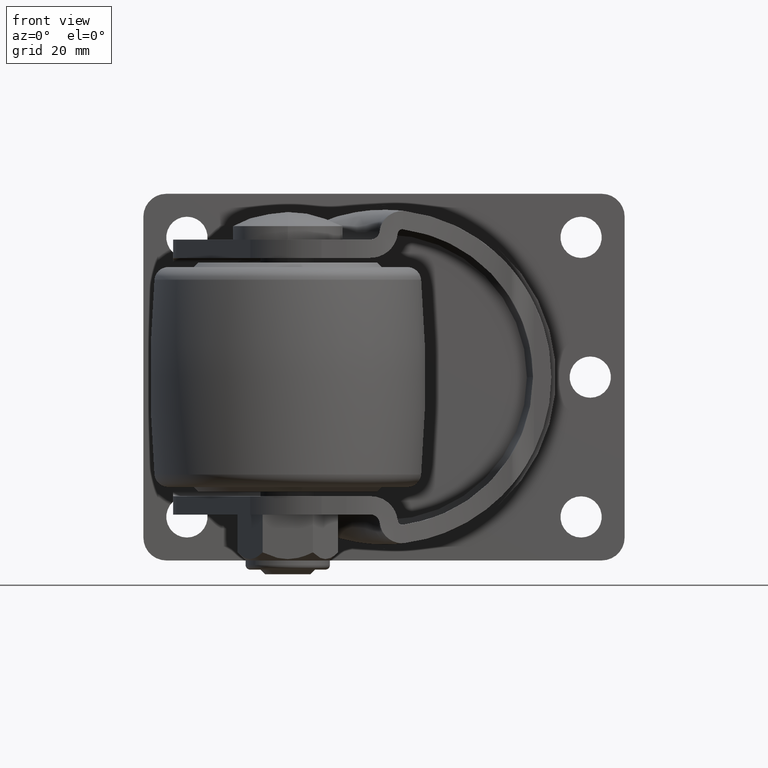
[diagram: clean part render]
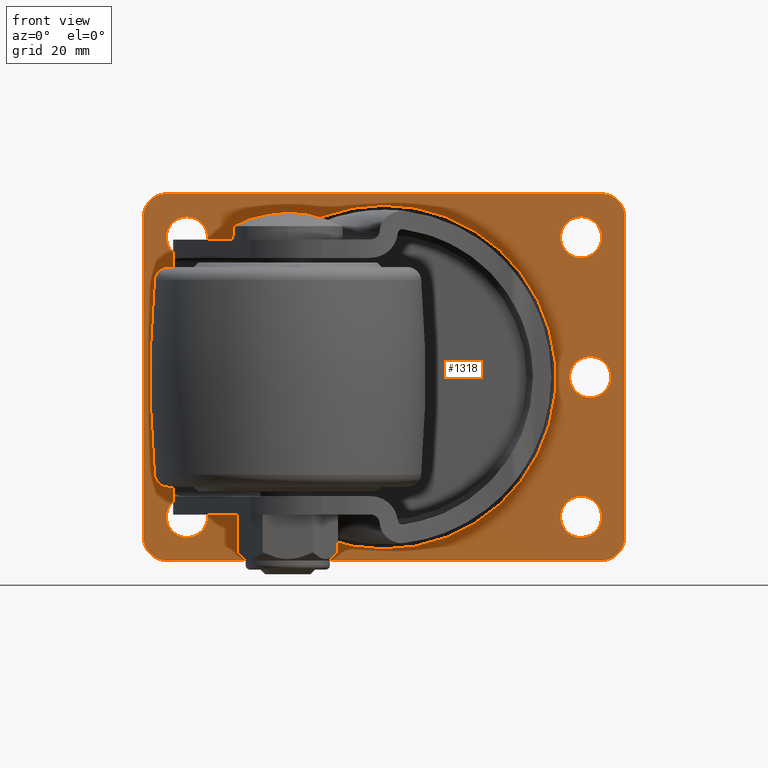
[diagram: same view with one face highlighted and labeled with its STEP entity id]
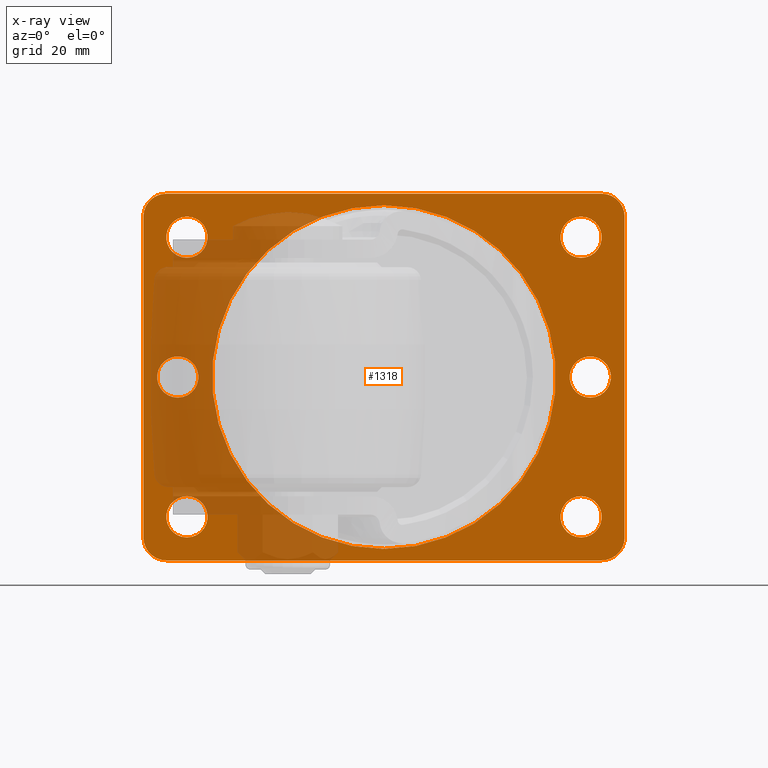
[diagram: x-ray of the same camera — body ghosted, the highlighted face saturated]
A machine part, front view. The second image highlights one B-rep face of the part: STEP entity #1318.
The next image is the same camera in x-ray: the body ghosted, the highlighted face saturated — about 32% of this face is hidden behind the body in this view.
In plain terms, the highlighted planar face has unit normal (0, 1, 0).
Its self-contained STEP definition (entity closure, byte-faithful):
#18 = AXIS2_PLACEMENT_3D ( 'NONE', #3125, #4708, #1131 ) ;
#100 = EDGE_CURVE ( 'NONE', #6033, #288, #905, .T. ) ;
#129 = VERTEX_POINT ( 'NONE', #4934 ) ;
#131 = CARTESIAN_POINT ( 'NONE',  ( 21.00000000000002487, 53.00000000000000711, 37.50000000000000000 ) ) ;
#154 = VERTEX_POINT ( 'NONE', #1136 ) ;
#183 = ORIENTED_EDGE ( 'NONE', *, *, #3888, .T. ) ;
#210 = DIRECTION ( 'NONE',  ( 0.000000000000000000, 1.000000000000000000, 0.000000000000000000 ) ) ;
#226 = CIRCLE ( 'NONE', #2136, 4.500000000000001776 ) ;
#245 = CIRCLE ( 'NONE', #558, 4.500000000000003553 ) ;
#246 = DIRECTION ( 'NONE',  ( 0.000000000000000000, 1.000000000000000000, 0.000000000000000000 ) ) ;
#256 = ORIENTED_EDGE ( 'NONE', *, *, #1891, .T. ) ;
#288 = VERTEX_POINT ( 'NONE', #3499 ) ;
#313 = DIRECTION ( 'NONE',  ( 0.000000000000000000, -0.000000000000000000, 1.000000000000000000 ) ) ;
#334 = CARTESIAN_POINT ( 'NONE',  ( -21.99999999999997868, 53.00000000000000000, -30.50000000000002487 ) ) ;
#344 = AXIS2_PLACEMENT_3D ( 'NONE', #5015, #5539, #1004 ) ;
#351 = AXIS2_PLACEMENT_3D ( 'NONE', #5596, #2556, #5162 ) ;
#356 = AXIS2_PLACEMENT_3D ( 'NONE', #738, #246, #2724 ) ;
#370 = VERTEX_POINT ( 'NONE', #3691 ) ;
#375 = DIRECTION ( 'NONE',  ( 0.000000000000000000, 1.000000000000000000, 0.000000000000000000 ) ) ;
#392 = CIRCLE ( 'NONE', #5234, 5.000000000000000888 ) ;
#498 = ORIENTED_EDGE ( 'NONE', *, *, #1764, .T. ) ;
#547 = CIRCLE ( 'NONE', #344, 4.500000000000003553 ) ;
#549 = VERTEX_POINT ( 'NONE', #3061 ) ;
#552 = VECTOR ( 'NONE', #5653, 1000.000000000000000 ) ;
#558 = AXIS2_PLACEMENT_3D ( 'NONE', #334, #375, #724 ) ;
#569 = VERTEX_POINT ( 'NONE', #1476 ) ;
#668 = EDGE_CURVE ( 'NONE', #4223, #370, #5227, .T. ) ;
#672 = DIRECTION ( 'NONE',  ( 0.000000000000000000, 1.000000000000000000, 0.000000000000000000 ) ) ;
#676 = DIRECTION ( 'NONE',  ( 0.000000000000000000, 0.000000000000000000, 1.000000000000000000 ) ) ;
#689 = EDGE_LOOP ( 'NONE', ( #498, #6228 ) ) ;
#724 = DIRECTION ( 'NONE',  ( 0.000000000000000000, 0.000000000000000000, 1.000000000000000000 ) ) ;
#732 = FACE_BOUND ( 'NONE', #1886, .T. ) ;
#738 = CARTESIAN_POINT ( 'NONE',  ( 64.00000000000002842, 53.00000000000000000, 30.49999999999996447 ) ) ;
#773 = CARTESIAN_POINT ( 'NONE',  ( -21.99999999999997868, 53.00000000000000000, 30.50000000000002487 ) ) ;
#838 = DIRECTION ( 'NONE',  ( 0.000000000000000000, 1.000000000000000000, 0.000000000000000000 ) ) ;
#845 = CARTESIAN_POINT ( 'NONE',  ( -23.99999999999997868, 53.00000000000000000, 4.500000000000001776 ) ) ;
#876 = CARTESIAN_POINT ( 'NONE',  ( -21.99999999999997868, 53.00000000000000000, -35.00000000000002842 ) ) ;
#905 = CIRCLE ( 'NONE', #3346, 4.500000000000003553 ) ;
#909 = VERTEX_POINT ( 'NONE', #5220 ) ;
#925 = EDGE_LOOP ( 'NONE', ( #2810, #3948, #3151, #5798, #5062, #2709, #4304, #183 ) ) ;
#952 = DIRECTION ( 'NONE',  ( -0.000000000000000000, -1.000000000000000000, -0.000000000000000000 ) ) ;
#1004 = DIRECTION ( 'NONE',  ( 0.000000000000000000, 0.000000000000000000, 1.000000000000000000 ) ) ;
#1050 = EDGE_LOOP ( 'NONE', ( #4238, #6287 ) ) ;
#1073 = EDGE_CURVE ( 'NONE', #4036, #4993, #392, .T. ) ;
#1089 = ORIENTED_EDGE ( 'NONE', *, *, #4553, .T. ) ;
#1131 = DIRECTION ( 'NONE',  ( 2.775557561562892929E-15, 0.000000000000000000, 1.000000000000000000 ) ) ;
#1136 = CARTESIAN_POINT ( 'NONE',  ( 73.50000000000002842, 53.00000000000000711, 35.00000000000000000 ) ) ;
#1169 = LINE ( 'NONE', #2669, #1621 ) ;
#1173 = CARTESIAN_POINT ( 'NONE',  ( -31.49999999999997158, 53.00000000000000711, 39.99999999999999289 ) ) ;
#1179 = CIRCLE ( 'NONE', #3089, 4.999999999999997335 ) ;
#1210 = VERTEX_POINT ( 'NONE', #5868 ) ;
#1246 = ORIENTED_EDGE ( 'NONE', *, *, #5071, .T. ) ;
#1284 = DIRECTION ( 'NONE',  ( 0.000000000000000000, 0.000000000000000000, 1.000000000000000000 ) ) ;
#1294 = DIRECTION ( 'NONE',  ( 0.000000000000000000, 1.000000000000000000, 0.000000000000000000 ) ) ;
#1318 = ADVANCED_FACE ( 'NONE', ( #4814, #4317, #1332, #2864, #6303, #732, #4845, #1796 ), #2367, .F. ) ;
#1332 = FACE_BOUND ( 'NONE', #689, .T. ) ;
#1366 = DIRECTION ( 'NONE',  ( 0.000000000000000000, 1.000000000000000000, 0.000000000000000000 ) ) ;
#1401 = AXIS2_PLACEMENT_3D ( 'NONE', #1730, #3764, #5764 ) ;
#1408 = EDGE_CURVE ( 'NONE', #5242, #4733, #4470, .T. ) ;
#1476 = CARTESIAN_POINT ( 'NONE',  ( 68.50000000000001421, 53.00000000000000711, 39.99999999999999289 ) ) ;
#1618 = CARTESIAN_POINT ( 'NONE',  ( -31.49999999999997158, 53.00000000000000711, 35.00000000000000000 ) ) ;
#1621 = VECTOR ( 'NONE', #6187, 1000.000000000000000 ) ;
#1705 = AXIS2_PLACEMENT_3D ( 'NONE', #4842, #838, #4740 ) ;
#1720 = CIRCLE ( 'NONE', #4795, 4.500000000000003553 ) ;
#1723 = VERTEX_POINT ( 'NONE', #3535 ) ;
#1730 = CARTESIAN_POINT ( 'NONE',  ( 21.00000000000002487, 53.00000000000000711, 0.000000000000000000 ) ) ;
#1764 = EDGE_CURVE ( 'NONE', #6006, #6261, #547, .T. ) ;
#1796 = FACE_BOUND ( 'NONE', #2717, .T. ) ;
#1886 = EDGE_LOOP ( 'NONE', ( #1089, #4160 ) ) ;
#1889 = CARTESIAN_POINT ( 'NONE',  ( 64.00000000000002842, 53.00000000000000000, 30.49999999999996447 ) ) ;
#1891 = EDGE_CURVE ( 'NONE', #909, #3740, #226, .T. ) ;
#1919 = CARTESIAN_POINT ( 'NONE',  ( 64.00000000000002842, 53.00000000000000000, 34.99999999999997158 ) ) ;
#1955 = ORIENTED_EDGE ( 'NONE', *, *, #100, .T. ) ;
#2045 = EDGE_CURVE ( 'NONE', #154, #4993, #6132, .T. ) ;
#2055 = VERTEX_POINT ( 'NONE', #1618 ) ;
#2136 = AXIS2_PLACEMENT_3D ( 'NONE', #4687, #3194, #676 ) ;
#2141 = CIRCLE ( 'NONE', #1705, 4.500000000000003553 ) ;
#2224 = ORIENTED_EDGE ( 'NONE', *, *, #668, .T. ) ;
#2241 = VERTEX_POINT ( 'NONE', #2498 ) ;
#2268 = CIRCLE ( 'NONE', #5639, 37.50000000000000000 ) ;
#2325 = EDGE_LOOP ( 'NONE', ( #4345, #5654 ) ) ;
#2367 = PLANE ( 'NONE',  #3029 ) ;
#2445 = DIRECTION ( 'NONE',  ( 0.000000000000000000, 1.000000000000000000, 0.000000000000000000 ) ) ;
#2498 = CARTESIAN_POINT ( 'NONE',  ( 66.00000000000002842, 53.00000000000000000, 4.499999999999993783 ) ) ;
#2556 = DIRECTION ( 'NONE',  ( 0.000000000000000000, 1.000000000000000000, 0.000000000000000000 ) ) ;
#2626 = DIRECTION ( 'NONE',  ( -0.000000000000000000, -1.000000000000000000, -0.000000000000000000 ) ) ;
#2662 = CARTESIAN_POINT ( 'NONE',  ( 66.00000000000002842, 53.00000000000000000, -4.500000000000015987 ) ) ;
#2669 = CARTESIAN_POINT ( 'NONE',  ( -31.49999999999997868, 53.00000000000000711, -40.00000000000000711 ) ) ;
#2699 = EDGE_CURVE ( 'NONE', #1723, #129, #3106, .T. ) ;
#2705 = EDGE_CURVE ( 'NONE', #3669, #2241, #1720, .T. ) ;
#2709 = ORIENTED_EDGE ( 'NONE', *, *, #4016, .T. ) ;
#2717 = EDGE_LOOP ( 'NONE', ( #1246, #256 ) ) ;
#2724 = DIRECTION ( 'NONE',  ( 0.000000000000000000, 0.000000000000000000, 1.000000000000000000 ) ) ;
#2725 = DIRECTION ( 'NONE',  ( 0.000000000000000000, 0.000000000000000000, 1.000000000000000000 ) ) ;
#2784 = ORIENTED_EDGE ( 'NONE', *, *, #3897, .T. ) ;
#2810 = ORIENTED_EDGE ( 'NONE', *, *, #3560, .F. ) ;
#2864 = FACE_BOUND ( 'NONE', #3573, .T. ) ;
#2953 = EDGE_CURVE ( 'NONE', #288, #6033, #4156, .T. ) ;
#2996 = CIRCLE ( 'NONE', #3204, 4.500000000000007105 ) ;
#3029 = AXIS2_PLACEMENT_3D ( 'NONE', #3831, #1294, #313 ) ;
#3048 = CARTESIAN_POINT ( 'NONE',  ( 73.50000000000001421, 53.00000000000000711, -40.00000000000000711 ) ) ;
#3061 = CARTESIAN_POINT ( 'NONE',  ( -26.49999999999997158, 53.00000000000000711, 39.99999999999999289 ) ) ;
#3089 = AXIS2_PLACEMENT_3D ( 'NONE', #4614, #2626, #5718 ) ;
#3106 = CIRCLE ( 'NONE', #5837, 4.500000000000007105 ) ;
#3125 = CARTESIAN_POINT ( 'NONE',  ( 68.50000000000001421, 53.00000000000000711, 34.99999999999999289 ) ) ;
#3151 = ORIENTED_EDGE ( 'NONE', *, *, #5645, .F. ) ;
#3194 = DIRECTION ( 'NONE',  ( 0.000000000000000000, 1.000000000000000000, 0.000000000000000000 ) ) ;
#3195 = VECTOR ( 'NONE', #4465, 1000.000000000000000 ) ;
#3204 = AXIS2_PLACEMENT_3D ( 'NONE', #4690, #210, #5238 ) ;
#3228 = CARTESIAN_POINT ( 'NONE',  ( -23.99999999999997868, 53.00000000000000000, 0.000000000000000000 ) ) ;
#3310 = CIRCLE ( 'NONE', #351, 4.500000000000003553 ) ;
#3346 = AXIS2_PLACEMENT_3D ( 'NONE', #1889, #2445, #3568 ) ;
#3450 = CARTESIAN_POINT ( 'NONE',  ( -31.49999999999997868, 53.00000000000000711, -40.00000000000000711 ) ) ;
#3468 = AXIS2_PLACEMENT_3D ( 'NONE', #5366, #1366, #4349 ) ;
#3499 = CARTESIAN_POINT ( 'NONE',  ( 64.00000000000002842, 53.00000000000000000, 25.99999999999996092 ) ) ;
#3535 = CARTESIAN_POINT ( 'NONE',  ( -21.99999999999997868, 53.00000000000000000, 26.00000000000002132 ) ) ;
#3560 = EDGE_CURVE ( 'NONE', #5883, #2055, #5541, .T. ) ;
#3568 = DIRECTION ( 'NONE',  ( 0.000000000000000000, 0.000000000000000000, 1.000000000000000000 ) ) ;
#3573 = EDGE_LOOP ( 'NONE', ( #2224, #2784 ) ) ;
#3669 = VERTEX_POINT ( 'NONE', #2662 ) ;
#3691 = CARTESIAN_POINT ( 'NONE',  ( 64.00000000000001421, 53.00000000000000000, -35.00000000000003553 ) ) ;
#3692 = DIRECTION ( 'NONE',  ( -0.000000000000000000, -1.000000000000000000, -0.000000000000000000 ) ) ;
#3740 = VERTEX_POINT ( 'NONE', #845 ) ;
#3748 = CIRCLE ( 'NONE', #5631, 4.500000000000001776 ) ;
#3753 = CIRCLE ( 'NONE', #5637, 5.000000000000000888 ) ;
#3764 = DIRECTION ( 'NONE',  ( -0.000000000000000000, -1.000000000000000000, -0.000000000000000000 ) ) ;
#3831 = CARTESIAN_POINT ( 'NONE',  ( 0.000000000000000000, 53.00000000000000711, 0.000000000000000000 ) ) ;
#3888 = EDGE_CURVE ( 'NONE', #549, #2055, #1179, .T. ) ;
#3897 = EDGE_CURVE ( 'NONE', #370, #4223, #3310, .T. ) ;
#3948 = ORIENTED_EDGE ( 'NONE', *, *, #5570, .T. ) ;
#4016 = EDGE_CURVE ( 'NONE', #154, #569, #6031, .T. ) ;
#4036 = VERTEX_POINT ( 'NONE', #4207 ) ;
#4091 = EDGE_CURVE ( 'NONE', #2241, #3669, #2141, .T. ) ;
#4119 = CARTESIAN_POINT ( 'NONE',  ( 21.00000000000002487, 53.00000000000000711, 0.000000000000000000 ) ) ;
#4156 = CIRCLE ( 'NONE', #356, 4.500000000000003553 ) ;
#4160 = ORIENTED_EDGE ( 'NONE', *, *, #2699, .T. ) ;
#4207 = CARTESIAN_POINT ( 'NONE',  ( 68.50000000000000000, 53.00000000000000711, -40.00000000000000711 ) ) ;
#4223 = VERTEX_POINT ( 'NONE', #4634 ) ;
#4238 = ORIENTED_EDGE ( 'NONE', *, *, #1408, .F. ) ;
#4274 = DIRECTION ( 'NONE',  ( -0.000000000000000000, -1.000000000000000000, -0.000000000000000000 ) ) ;
#4304 = ORIENTED_EDGE ( 'NONE', *, *, #5971, .F. ) ;
#4317 = FACE_OUTER_BOUND ( 'NONE', #925, .T. ) ;
#4345 = ORIENTED_EDGE ( 'NONE', *, *, #4091, .T. ) ;
#4349 = DIRECTION ( 'NONE',  ( 0.000000000000000000, 0.000000000000000000, 1.000000000000000000 ) ) ;
#4461 = CARTESIAN_POINT ( 'NONE',  ( 21.00000000000002842, 53.00000000000000711, -37.50000000000000000 ) ) ;
#4465 = DIRECTION ( 'NONE',  ( 8.673617379884035472E-17, 0.000000000000000000, 1.000000000000000000 ) ) ;
#4470 = CIRCLE ( 'NONE', #1401, 37.50000000000000000 ) ;
#4553 = EDGE_CURVE ( 'NONE', #129, #1723, #2996, .T. ) ;
#4614 = CARTESIAN_POINT ( 'NONE',  ( -26.49999999999997158, 53.00000000000000711, 35.00000000000000000 ) ) ;
#4634 = CARTESIAN_POINT ( 'NONE',  ( 64.00000000000001421, 53.00000000000000000, -26.00000000000002842 ) ) ;
#4687 = CARTESIAN_POINT ( 'NONE',  ( -23.99999999999997868, 53.00000000000000000, 0.000000000000000000 ) ) ;
#4690 = CARTESIAN_POINT ( 'NONE',  ( -21.99999999999997868, 53.00000000000000000, 30.50000000000002487 ) ) ;
#4708 = DIRECTION ( 'NONE',  ( -0.000000000000000000, -1.000000000000000000, -0.000000000000000000 ) ) ;
#4733 = VERTEX_POINT ( 'NONE', #4461 ) ;
#4740 = DIRECTION ( 'NONE',  ( 0.000000000000000000, 0.000000000000000000, 1.000000000000000000 ) ) ;
#4795 = AXIS2_PLACEMENT_3D ( 'NONE', #5692, #672, #4815 ) ;
#4814 = FACE_BOUND ( 'NONE', #1050, .T. ) ;
#4815 = DIRECTION ( 'NONE',  ( 0.000000000000000000, 0.000000000000000000, 1.000000000000000000 ) ) ;
#4842 = CARTESIAN_POINT ( 'NONE',  ( 66.00000000000002842, 53.00000000000000000, -1.084202172485504434E-14 ) ) ;
#4845 = FACE_BOUND ( 'NONE', #2325, .T. ) ;
#4934 = CARTESIAN_POINT ( 'NONE',  ( -21.99999999999997868, 53.00000000000000000, 35.00000000000002842 ) ) ;
#4993 = VERTEX_POINT ( 'NONE', #5633 ) ;
#5015 = CARTESIAN_POINT ( 'NONE',  ( -21.99999999999997868, 53.00000000000000000, -30.50000000000002487 ) ) ;
#5029 = DIRECTION ( 'NONE',  ( 0.000000000000000000, 0.000000000000000000, 1.000000000000000000 ) ) ;
#5062 = ORIENTED_EDGE ( 'NONE', *, *, #2045, .F. ) ;
#5071 = EDGE_CURVE ( 'NONE', #3740, #909, #3748, .T. ) ;
#5162 = DIRECTION ( 'NONE',  ( 0.000000000000000000, 0.000000000000000000, 1.000000000000000000 ) ) ;
#5210 = VECTOR ( 'NONE', #5676, 1000.000000000000000 ) ;
#5220 = CARTESIAN_POINT ( 'NONE',  ( -23.99999999999997868, 53.00000000000000000, -4.500000000000001776 ) ) ;
#5227 = CIRCLE ( 'NONE', #3468, 4.500000000000003553 ) ;
#5228 = DIRECTION ( 'NONE',  ( 0.000000000000000000, 1.000000000000000000, 0.000000000000000000 ) ) ;
#5234 = AXIS2_PLACEMENT_3D ( 'NONE', #5319, #4274, #1284 ) ;
#5238 = DIRECTION ( 'NONE',  ( 0.000000000000000000, 0.000000000000000000, 1.000000000000000000 ) ) ;
#5242 = VERTEX_POINT ( 'NONE', #131 ) ;
#5319 = CARTESIAN_POINT ( 'NONE',  ( 68.50000000000000000, 53.00000000000000711, -35.00000000000000711 ) ) ;
#5366 = CARTESIAN_POINT ( 'NONE',  ( 64.00000000000001421, 53.00000000000000000, -30.50000000000003553 ) ) ;
#5447 = EDGE_CURVE ( 'NONE', #6261, #6006, #245, .T. ) ;
#5488 = CARTESIAN_POINT ( 'NONE',  ( -26.49999999999997868, 53.00000000000000711, -35.00000000000000711 ) ) ;
#5539 = DIRECTION ( 'NONE',  ( 0.000000000000000000, 1.000000000000000000, 0.000000000000000000 ) ) ;
#5541 = LINE ( 'NONE', #3450, #3195 ) ;
#5570 = EDGE_CURVE ( 'NONE', #5883, #1210, #3753, .T. ) ;
#5596 = CARTESIAN_POINT ( 'NONE',  ( 64.00000000000001421, 53.00000000000000000, -30.50000000000003553 ) ) ;
#5631 = AXIS2_PLACEMENT_3D ( 'NONE', #3228, #5228, #2725 ) ;
#5633 = CARTESIAN_POINT ( 'NONE',  ( 73.50000000000001421, 53.00000000000000711, -35.00000000000000711 ) ) ;
#5637 = AXIS2_PLACEMENT_3D ( 'NONE', #5488, #952, #5029 ) ;
#5639 = AXIS2_PLACEMENT_3D ( 'NONE', #4119, #3692, #6179 ) ;
#5645 = EDGE_CURVE ( 'NONE', #4036, #1210, #1169, .T. ) ;
#5653 = DIRECTION ( 'NONE',  ( -1.734723475976807094E-16, -0.000000000000000000, -1.000000000000000000 ) ) ;
#5654 = ORIENTED_EDGE ( 'NONE', *, *, #2705, .T. ) ;
#5676 = DIRECTION ( 'NONE',  ( 1.000000000000000000, 0.000000000000000000, 0.000000000000000000 ) ) ;
#5692 = CARTESIAN_POINT ( 'NONE',  ( 66.00000000000002842, 53.00000000000000000, -1.084202172485504434E-14 ) ) ;
#5718 = DIRECTION ( 'NONE',  ( 0.000000000000000000, 0.000000000000000000, 1.000000000000000000 ) ) ;
#5735 = EDGE_LOOP ( 'NONE', ( #1955, #6349 ) ) ;
#5764 = DIRECTION ( 'NONE',  ( 0.000000000000000000, 0.000000000000000000, 1.000000000000000000 ) ) ;
#5778 = LINE ( 'NONE', #1173, #5210 ) ;
#5798 = ORIENTED_EDGE ( 'NONE', *, *, #1073, .T. ) ;
#5837 = AXIS2_PLACEMENT_3D ( 'NONE', #773, #6181, #6280 ) ;
#5868 = CARTESIAN_POINT ( 'NONE',  ( -26.49999999999997868, 53.00000000000000711, -40.00000000000000711 ) ) ;
#5883 = VERTEX_POINT ( 'NONE', #6259 ) ;
#5971 = EDGE_CURVE ( 'NONE', #549, #569, #5778, .T. ) ;
#6006 = VERTEX_POINT ( 'NONE', #6217 ) ;
#6031 = CIRCLE ( 'NONE', #18, 4.999999999999997335 ) ;
#6033 = VERTEX_POINT ( 'NONE', #1919 ) ;
#6132 = LINE ( 'NONE', #3048, #552 ) ;
#6179 = DIRECTION ( 'NONE',  ( 0.000000000000000000, 0.000000000000000000, 1.000000000000000000 ) ) ;
#6181 = DIRECTION ( 'NONE',  ( 0.000000000000000000, 1.000000000000000000, 0.000000000000000000 ) ) ;
#6187 = DIRECTION ( 'NONE',  ( -1.000000000000000000, -0.000000000000000000, -0.000000000000000000 ) ) ;
#6217 = CARTESIAN_POINT ( 'NONE',  ( -21.99999999999997868, 53.00000000000000000, -26.00000000000002132 ) ) ;
#6228 = ORIENTED_EDGE ( 'NONE', *, *, #5447, .T. ) ;
#6259 = CARTESIAN_POINT ( 'NONE',  ( -31.49999999999997868, 53.00000000000000711, -35.00000000000000711 ) ) ;
#6261 = VERTEX_POINT ( 'NONE', #876 ) ;
#6280 = DIRECTION ( 'NONE',  ( 0.000000000000000000, 0.000000000000000000, 1.000000000000000000 ) ) ;
#6287 = ORIENTED_EDGE ( 'NONE', *, *, #6466, .F. ) ;
#6303 = FACE_BOUND ( 'NONE', #5735, .T. ) ;
#6349 = ORIENTED_EDGE ( 'NONE', *, *, #2953, .T. ) ;
#6466 = EDGE_CURVE ( 'NONE', #4733, #5242, #2268, .T. ) ;